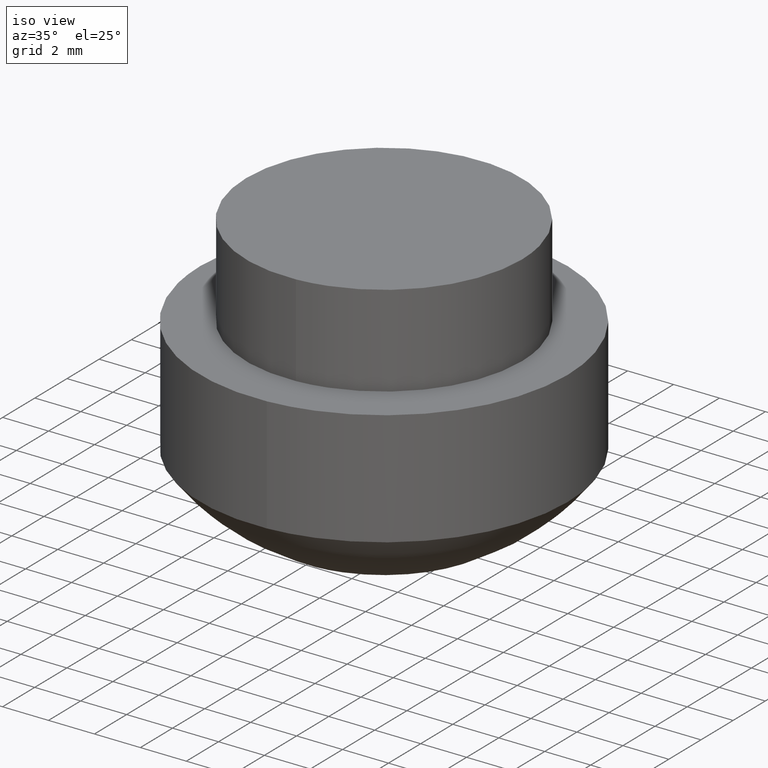
[diagram: clean part render]
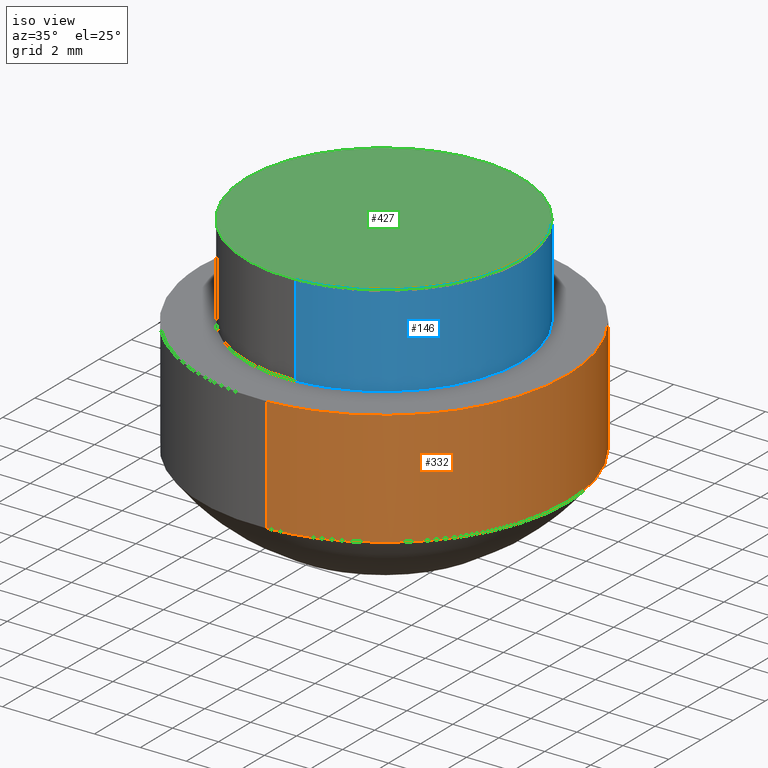
[diagram: same view with three faces highlighted in distinct colors, each labeled with its STEP entity id]
A machine part, iso view with three faces highlighted in distinct colors.
Their STEP definitions:

[orange] entity #332 — the highlighted face is a freeform B-spline surface patch.
#230=CARTESIAN_POINT('',(-0.944273875065293,7.944076192495398,9.125000001236240));
#231=CARTESIAN_POINT('',(-0.716917827442045,7.971100905112271,9.125000001236238));
#232=CARTESIAN_POINT('',(-0.488388315146799,7.985078368865961,9.125000001236240));
#233=CARTESIAN_POINT('',(7.496690053719162,8.473466684012760,9.125000001236240));
#234=CARTESIAN_POINT('',(7.985078368865961,0.488388315146799,9.125000001236240));
#235=CARTESIAN_POINT('',(8.473466684012760,-7.496690053719162,9.125000001236240));
#236=CARTESIAN_POINT('',(0.488388315146799,-7.985078368865961,9.125000001236240));
#237=CARTESIAN_POINT('',(-0.944273875065293,7.944076192495398,3.871874949283356));
#238=CARTESIAN_POINT('',(-0.716917827442045,7.971100905112271,3.871874949283356));
#239=CARTESIAN_POINT('',(-0.488388315146799,7.985078368865961,3.871874949283356));
#240=CARTESIAN_POINT('',(7.496690053719162,8.473466684012760,3.871874949283356));
#241=CARTESIAN_POINT('',(7.985078368865961,0.488388315146799,3.871874949283356));
#242=CARTESIAN_POINT('',(8.473466684012760,-7.496690053719162,3.871874949283356));
#243=CARTESIAN_POINT('',(0.488388315146799,-7.985078368865961,3.871874949283356));
#251=(BOUNDED_SURFACE()B_SPLINE_SURFACE(2,1,((#230,#237),(#231,#238),(#232,#239),(#233,#240),(#234,#241),(#235,#242),(#236,#243)),.UNSPECIFIED.,.F.,.F.,.U.)B_SPLINE_SURFACE_WITH_KNOTS((3,2,2,3),(2,2),(0.0,0.530193358608603,13.785027323823661,27.039861289038729),(0.0,5.253125051952884),.UNSPECIFIED.)GEOMETRIC_REPRESENTATION_ITEM()RATIONAL_B_SPLINE_SURFACE(((0.977505800795127,0.977505800795127),(0.988284271247462,0.988284271247462),(1.0,1.0),(0.707106781186548,0.707106781186548),(1.0,1.0),(0.707106781186548,0.707106781186548),(1.0,1.0)))REPRESENTATION_ITEM('')SURFACE());
#252=CARTESIAN_POINT('',(-0.944268818896609,7.944076802831477,8.999999999999961));
#253=VERTEX_POINT('',#252);
#254=CARTESIAN_POINT('',(8.0,0.0,9.0));
#255=VERTEX_POINT('',#254);
#256=CARTESIAN_POINT('',(-0.944268818896609,7.944076802831477,8.999999999999961));
#257=CARTESIAN_POINT('',(-0.473790401851614,8.0,9.0));
#258=CARTESIAN_POINT('',(0.0,8.0,9.0));
#259=CARTESIAN_POINT('',(8.0,8.0,9.000000000000002));
#260=CARTESIAN_POINT('',(8.0,0.0,9.0));
#268=(BOUNDED_CURVE()B_SPLINE_CURVE(2,(#256,#257,#258,#259,#260),.UNSPECIFIED.,.F.,.U.)B_SPLINE_CURVE_WITH_KNOTS((3,2,3),(0.229562581104482,0.250000000000000,0.500000000000000),.UNSPECIFIED.)CURVE()GEOMETRIC_REPRESENTATION_ITEM()RATIONAL_B_SPLINE_CURVE((0.956026965066519,0.976056074381811,1.0,0.707106781186548,1.0))REPRESENTATION_ITEM(''));
#269=EDGE_CURVE('',#253,#255,#268,.T.);
#270=ORIENTED_EDGE('',*,*,#269,.T.);
#271=CARTESIAN_POINT('',(0.488385459123709,-7.985078552835898,8.999999999999979));
#272=VERTEX_POINT('',#271);
#273=CARTESIAN_POINT('',(8.0,0.0,9.0));
#274=CARTESIAN_POINT('',(8.0,-7.525651232509167,9.0));
#275=CARTESIAN_POINT('',(0.488385459123709,-7.985078552835898,8.999999999999979));
#283=(BOUNDED_CURVE()B_SPLINE_CURVE(2,(#273,#274,#275),.UNSPECIFIED.,.F.,.U.)B_SPLINE_CURVE_WITH_KNOTS((3,3),(0.500000000000000,0.739333023969015),.UNSPECIFIED.)CURVE()GEOMETRIC_REPRESENTATION_ITEM()RATIONAL_B_SPLINE_CURVE((1.0,0.719603920965432,0.976072173966049))REPRESENTATION_ITEM(''));
#284=EDGE_CURVE('',#255,#272,#283,.T.);
#285=ORIENTED_EDGE('',*,*,#284,.T.);
#286=CARTESIAN_POINT('',(0.488385492346112,-7.985078532225735,3.999999950550500));
#287=VERTEX_POINT('',#286);
#288=CARTESIAN_POINT('',(0.488385459123709,-7.985078552835898,8.999999999999979));
#289=CARTESIAN_POINT('',(0.488385492346112,-7.985078532225735,3.999999950550500));
#290=QUASI_UNIFORM_CURVE('',1,(#288,#289),.UNSPECIFIED.,.F.,.U.);
#291=EDGE_CURVE('',#272,#287,#290,.T.);
#292=ORIENTED_EDGE('',*,*,#291,.T.);
#293=CARTESIAN_POINT('',(7.999999962912870,0.0,3.999999950550500));
#294=VERTEX_POINT('',#293);
#295=CARTESIAN_POINT('',(7.999999962912870,0.0,3.999999950550500));
#296=CARTESIAN_POINT('',(7.999999962912870,-7.525651165182715,3.999999950550501));
#297=CARTESIAN_POINT('',(0.488385492346112,-7.985078532225735,3.999999950550500));
#305=(BOUNDED_CURVE()B_SPLINE_CURVE(2,(#295,#296,#297),.UNSPECIFIED.,.F.,.U.)B_SPLINE_CURVE_WITH_KNOTS((3,3),(0.500000000000000,0.739333023226661),.UNSPECIFIED.)CURVE()GEOMETRIC_REPRESENTATION_ITEM()RATIONAL_B_SPLINE_CURVE((1.0,0.719603921835154,0.976072172375043))REPRESENTATION_ITEM(''));
#306=EDGE_CURVE('',#294,#287,#305,.T.);
#307=ORIENTED_EDGE('',*,*,#306,.F.);
#308=CARTESIAN_POINT('',(-0.944268877604578,7.944076777179117,3.999999950550500));
#309=VERTEX_POINT('',#308);
#310=CARTESIAN_POINT('',(-0.944268877604578,7.944076777179117,3.999999950550499));
#311=CARTESIAN_POINT('',(-0.473790430425430,7.999999962912871,3.999999950550500));
#312=CARTESIAN_POINT('',(0.0,7.999999962912870,3.999999950550500));
#313=CARTESIAN_POINT('',(7.999999962912870,7.999999962912870,3.999999950550501));
#314=CARTESIAN_POINT('',(7.999999962912870,0.0,3.999999950550500));
#322=(BOUNDED_CURVE()B_SPLINE_CURVE(2,(#310,#311,#312,#313,#314),.UNSPECIFIED.,.F.,.U.)B_SPLINE_CURVE_WITH_KNOTS((3,2,3),(0.229562579808957,0.250000000000000,0.500000000000000),.UNSPECIFIED.)CURVE()GEOMETRIC_REPRESENTATION_ITEM()RATIONAL_B_SPLINE_CURVE((0.956026962527235,0.976056072864010,1.0,0.707106781186548,1.0))REPRESENTATION_ITEM(''));
#323=EDGE_CURVE('',#309,#294,#322,.T.);
#324=ORIENTED_EDGE('',*,*,#323,.F.);
#325=CARTESIAN_POINT('',(-0.944268818896609,7.944076802831477,8.999999999999961));
#326=CARTESIAN_POINT('',(-0.944268877604578,7.944076777179117,3.999999950550500));
#327=QUASI_UNIFORM_CURVE('',1,(#325,#326),.UNSPECIFIED.,.F.,.U.);
#328=EDGE_CURVE('',#253,#309,#327,.T.);
#329=ORIENTED_EDGE('',*,*,#328,.F.);
#330=EDGE_LOOP('',(#270,#285,#292,#307,#324,#329));
#331=FACE_OUTER_BOUND('',#330,.T.);
#332=ADVANCED_FACE('',(#331),#251,.T.);

[blue] entity #146 — the highlighted face is a freeform B-spline surface patch.
#44=CARTESIAN_POINT('',(-0.708205407940551,5.958057158181998,13.100000000000000));
#45=CARTESIAN_POINT('',(-0.537688371827866,5.978325692691634,13.100000000000000));
#46=CARTESIAN_POINT('',(-0.366291237209142,5.988808790531200,13.100000000000000));
#47=CARTESIAN_POINT('',(5.622517553322059,6.355100027740342,13.100000000000001));
#48=CARTESIAN_POINT('',(5.988808790531200,0.366291237209142,13.100000000000000));
#49=CARTESIAN_POINT('',(6.355100027740342,-5.622517553322059,13.100000000000001));
#50=CARTESIAN_POINT('',(0.366291237209142,-5.988808790531200,13.100000000000000));
#51=CARTESIAN_POINT('',(-0.708205407940551,5.958057158181998,8.897499999999997));
#52=CARTESIAN_POINT('',(-0.537688371827866,5.978325692691634,8.897499999999997));
#53=CARTESIAN_POINT('',(-0.366291237209142,5.988808790531200,8.897499999999997));
#54=CARTESIAN_POINT('',(5.622517553322059,6.355100027740342,8.897499999999997));
#55=CARTESIAN_POINT('',(5.988808790531200,0.366291237209142,8.897499999999997));
#56=CARTESIAN_POINT('',(6.355100027740342,-5.622517553322059,8.897499999999997));
#57=CARTESIAN_POINT('',(0.366291237209142,-5.988808790531200,8.897499999999997));
#65=(BOUNDED_SURFACE()B_SPLINE_SURFACE(2,1,((#44,#51),(#45,#52),(#46,#53),(#47,#54),(#48,#55),(#49,#56),(#50,#57)),.UNSPECIFIED.,.F.,.F.,.U.)B_SPLINE_SURFACE_WITH_KNOTS((3,2,2,3),(2,2),(0.0,0.397645019878172,10.338770516832451,20.279896013786729),(0.0,4.202500000000004),.UNSPECIFIED.)GEOMETRIC_REPRESENTATION_ITEM()RATIONAL_B_SPLINE_SURFACE(((0.977505800795127,0.977505800795127),(0.988284271247462,0.988284271247462),(1.0,1.0),(0.707106781186548,0.707106781186548),(1.0,1.0),(0.707106781186548,0.707106781186548),(1.0,1.0)))REPRESENTATION_ITEM('')SURFACE());
#66=CARTESIAN_POINT('',(-0.708199855991939,5.958057818110003,13.0));
#67=VERTEX_POINT('',#66);
#68=CARTESIAN_POINT('',(6.0,0.0,13.0));
#69=VERTEX_POINT('',#68);
#70=CARTESIAN_POINT('',(-0.708199855991939,5.958057818110003,13.000000000000004));
#71=CARTESIAN_POINT('',(-0.355341912590297,6.0,13.000000000000004));
#72=CARTESIAN_POINT('',(0.0,6.0,13.0));
#73=CARTESIAN_POINT('',(6.0,6.0,13.000000000000002));
#74=CARTESIAN_POINT('',(6.0,0.0,13.0));
#82=(BOUNDED_CURVE()B_SPLINE_CURVE(2,(#70,#71,#72,#73,#74),.UNSPECIFIED.,.F.,.U.)B_SPLINE_CURVE_WITH_KNOTS((3,2,3),(0.229562630999432,0.250000000000000,0.500000000000000),.UNSPECIFIED.)CURVE()GEOMETRIC_REPRESENTATION_ITEM()RATIONAL_B_SPLINE_CURVE((0.956027062862787,0.976056132837381,1.0,0.707106781186548,1.0))REPRESENTATION_ITEM(''));
#83=EDGE_CURVE('',#67,#69,#82,.T.);
#84=ORIENTED_EDGE('',*,*,#83,.T.);
#85=CARTESIAN_POINT('',(0.366286036583908,-5.988809108610534,13.000000000000020));
#86=VERTEX_POINT('',#85);
#87=CARTESIAN_POINT('',(6.0,0.0,13.0));
#88=CARTESIAN_POINT('',(6.0,-5.644241311996911,13.0));
#89=CARTESIAN_POINT('',(0.366286036583908,-5.988809108610534,13.000000000000021));
#97=(BOUNDED_CURVE()B_SPLINE_CURVE(2,(#87,#88,#89),.UNSPECIFIED.,.F.,.U.)B_SPLINE_CURVE_WITH_KNOTS((3,3),(0.500000000000000,0.739333112079995),.UNSPECIFIED.)CURVE()GEOMETRIC_REPRESENTATION_ITEM()RATIONAL_B_SPLINE_CURVE((1.0,0.719603817736998,0.976072362804825))REPRESENTATION_ITEM(''));
#98=EDGE_CURVE('',#69,#86,#97,.T.);
#99=ORIENTED_EDGE('',*,*,#98,.T.);
#100=CARTESIAN_POINT('',(0.366286099267417,-5.988809104776754,9.0));
#101=VERTEX_POINT('',#100);
#102=CARTESIAN_POINT('',(0.366286036583908,-5.988809108610534,13.000000000000020));
#103=CARTESIAN_POINT('',(0.366286099267417,-5.988809104776754,9.0));
#104=QUASI_UNIFORM_CURVE('',1,(#102,#103),.UNSPECIFIED.,.F.,.U.);
#105=EDGE_CURVE('',#86,#101,#104,.T.);
#106=ORIENTED_EDGE('',*,*,#105,.T.);
#107=CARTESIAN_POINT('',(6.0,0.0,9.0));
#108=VERTEX_POINT('',#107);
#109=CARTESIAN_POINT('',(6.0,0.0,9.0));
#110=CARTESIAN_POINT('',(6.000000000000001,-5.644241252809525,9.000000000000002));
#111=CARTESIAN_POINT('',(0.366286099267417,-5.988809104776754,9.0));
#119=(BOUNDED_CURVE()B_SPLINE_CURVE(2,(#109,#110,#111),.UNSPECIFIED.,.F.,.U.)B_SPLINE_CURVE_WITH_KNOTS((3,3),(0.500000000000000,0.739333110273986),.UNSPECIFIED.)CURVE()GEOMETRIC_REPRESENTATION_ITEM()RATIONAL_B_SPLINE_CURVE((1.0,0.719603819852869,0.976072358934200))REPRESENTATION_ITEM(''));
#120=EDGE_CURVE('',#108,#101,#119,.T.);
#121=ORIENTED_EDGE('',*,*,#120,.F.);
#122=CARTESIAN_POINT('',(-0.708199922886695,5.958057810158673,9.0));
#123=VERTEX_POINT('',#122);
#124=CARTESIAN_POINT('',(-0.708199922886695,5.958057810158673,9.0));
#125=CARTESIAN_POINT('',(-0.355341946391267,6.000000000000001,9.000000000000002));
#126=CARTESIAN_POINT('',(0.0,6.0,9.0));
#127=CARTESIAN_POINT('',(6.0,6.0,9.000000000000002));
#128=CARTESIAN_POINT('',(6.0,0.0,9.0));
#136=(BOUNDED_CURVE()B_SPLINE_CURVE(2,(#124,#125,#126,#127,#128),.UNSPECIFIED.,.F.,.U.)B_SPLINE_CURVE_WITH_KNOTS((3,2,3),(0.229562629101929,0.250000000000000,0.500000000000000),.UNSPECIFIED.)CURVE()GEOMETRIC_REPRESENTATION_ITEM()RATIONAL_B_SPLINE_CURVE((0.956027059143597,0.976056130614318,1.0,0.707106781186548,1.0))REPRESENTATION_ITEM(''));
#137=EDGE_CURVE('',#123,#108,#136,.T.);
#138=ORIENTED_EDGE('',*,*,#137,.F.);
#139=CARTESIAN_POINT('',(-0.708199855991939,5.958057818110003,13.0));
#140=CARTESIAN_POINT('',(-0.708199922886695,5.958057810158673,9.0));
#141=QUASI_UNIFORM_CURVE('',1,(#139,#140),.UNSPECIFIED.,.F.,.U.);
#142=EDGE_CURVE('',#67,#123,#141,.T.);
#143=ORIENTED_EDGE('',*,*,#142,.F.);
#144=EDGE_LOOP('',(#84,#99,#106,#121,#138,#143));
#145=FACE_OUTER_BOUND('',#144,.T.);
#146=ADVANCED_FACE('',(#145),#65,.T.);

[green] entity #427 — the highlighted face is a freeform B-spline surface patch.
#66=CARTESIAN_POINT('',(-0.708199855991939,5.958057818110003,13.0));
#67=VERTEX_POINT('',#66);
#68=CARTESIAN_POINT('',(6.0,0.0,13.0));
#69=VERTEX_POINT('',#68);
#70=CARTESIAN_POINT('',(-0.708199855991939,5.958057818110003,13.000000000000004));
#71=CARTESIAN_POINT('',(-0.355341912590297,6.0,13.000000000000004));
#72=CARTESIAN_POINT('',(0.0,6.0,13.0));
#73=CARTESIAN_POINT('',(6.0,6.0,13.000000000000002));
#74=CARTESIAN_POINT('',(6.0,0.0,13.0));
#82=(BOUNDED_CURVE()B_SPLINE_CURVE(2,(#70,#71,#72,#73,#74),.UNSPECIFIED.,.F.,.U.)B_SPLINE_CURVE_WITH_KNOTS((3,2,3),(0.229562630999432,0.250000000000000,0.500000000000000),.UNSPECIFIED.)CURVE()GEOMETRIC_REPRESENTATION_ITEM()RATIONAL_B_SPLINE_CURVE((0.956027062862787,0.976056132837381,1.0,0.707106781186548,1.0))REPRESENTATION_ITEM(''));
#83=EDGE_CURVE('',#67,#69,#82,.T.);
#85=CARTESIAN_POINT('',(0.366286036583908,-5.988809108610534,13.000000000000020));
#86=VERTEX_POINT('',#85);
#87=CARTESIAN_POINT('',(6.0,0.0,13.0));
#88=CARTESIAN_POINT('',(6.0,-5.644241311996911,13.0));
#89=CARTESIAN_POINT('',(0.366286036583908,-5.988809108610534,13.000000000000021));
#97=(BOUNDED_CURVE()B_SPLINE_CURVE(2,(#87,#88,#89),.UNSPECIFIED.,.F.,.U.)B_SPLINE_CURVE_WITH_KNOTS((3,3),(0.500000000000000,0.739333112079995),.UNSPECIFIED.)CURVE()GEOMETRIC_REPRESENTATION_ITEM()RATIONAL_B_SPLINE_CURVE((1.0,0.719603817736998,0.976072362804825))REPRESENTATION_ITEM(''));
#98=EDGE_CURVE('',#69,#86,#97,.T.);
#165=CARTESIAN_POINT('',(-6.0,0.0,13.0));
#166=VERTEX_POINT('',#165);
#167=CARTESIAN_POINT('',(-6.0,0.0,13.0));
#168=CARTESIAN_POINT('',(-6.000000000000001,5.329052156480185,13.000000000000002));
#169=CARTESIAN_POINT('',(-0.708199855991939,5.958057818110003,13.000000000000004));
#177=(BOUNDED_CURVE()B_SPLINE_CURVE(2,(#167,#168,#169),.UNSPECIFIED.,.F.,.U.)B_SPLINE_CURVE_WITH_KNOTS((3,3),(0.0,0.229562630999432),.UNSPECIFIED.)CURVE()GEOMETRIC_REPRESENTATION_ITEM()RATIONAL_B_SPLINE_CURVE((1.0,0.731050648349166,0.956027062862787))REPRESENTATION_ITEM(''));
#178=EDGE_CURVE('',#166,#67,#177,.T.);
#212=CARTESIAN_POINT('',(0.366286036583908,-5.988809108610534,13.000000000000021));
#213=CARTESIAN_POINT('',(0.183313972188067,-6.0,13.000000000000002));
#214=CARTESIAN_POINT('',(0.0,-6.0,13.0));
#215=CARTESIAN_POINT('',(-6.0,-6.0,13.000000000000002));
#216=CARTESIAN_POINT('',(-6.0,0.0,13.0));
#224=(BOUNDED_CURVE()B_SPLINE_CURVE(2,(#212,#213,#214,#215,#216),.UNSPECIFIED.,.F.,.U.)B_SPLINE_CURVE_WITH_KNOTS((3,2,3),(0.739333112079995,0.750000000000000,1.0),.UNSPECIFIED.)CURVE()GEOMETRIC_REPRESENTATION_ITEM()RATIONAL_B_SPLINE_CURVE((0.976072362804825,0.987502963449549,1.0,0.707106781186548,1.0))REPRESENTATION_ITEM(''));
#225=EDGE_CURVE('',#86,#166,#224,.T.);
#416=CARTESIAN_POINT('',(-6.599399976741671,-6.599253942074771,13.0));
#417=CARTESIAN_POINT('',(6.599400298606753,-6.599253942074771,13.0));
#418=CARTESIAN_POINT('',(-6.599399976741671,6.599290849270816,13.0));
#419=CARTESIAN_POINT('',(6.599400298606753,6.599290849270816,13.0));
#420=B_SPLINE_SURFACE_WITH_KNOTS('',1,1,((#416,#418),(#417,#419)),.UNSPECIFIED.,.F.,.F.,.U.,(2,2),(2,2),(0.0,13.198800275348420),(0.0,13.198544791345590),.UNSPECIFIED.);
#421=ORIENTED_EDGE('',*,*,#225,.F.);
#422=ORIENTED_EDGE('',*,*,#98,.F.);
#423=ORIENTED_EDGE('',*,*,#83,.F.);
#424=ORIENTED_EDGE('',*,*,#178,.F.);
#425=EDGE_LOOP('',(#421,#422,#423,#424));
#426=FACE_OUTER_BOUND('',#425,.T.);
#427=ADVANCED_FACE('',(#426),#420,.T.);